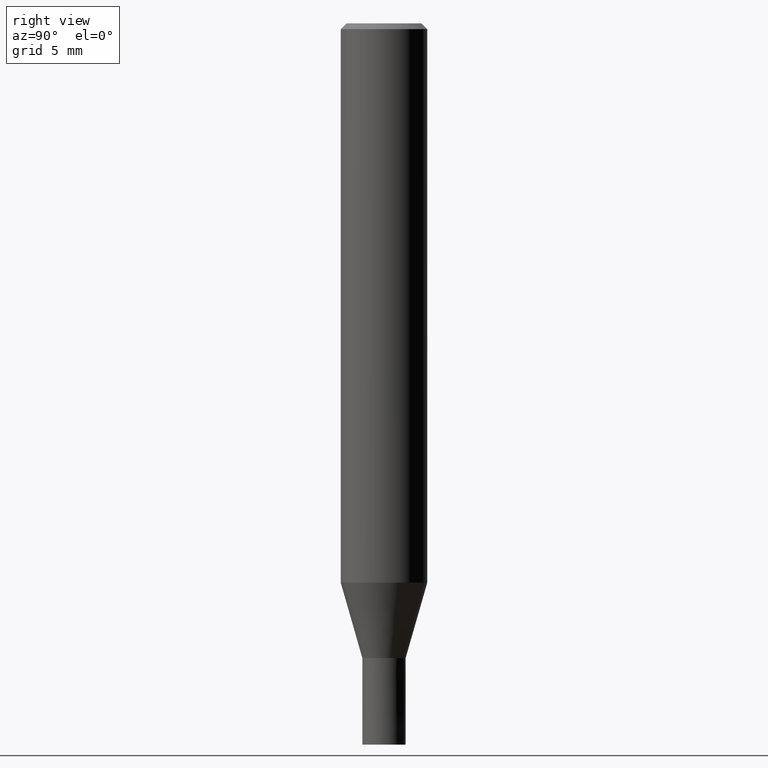
[diagram: clean part render]
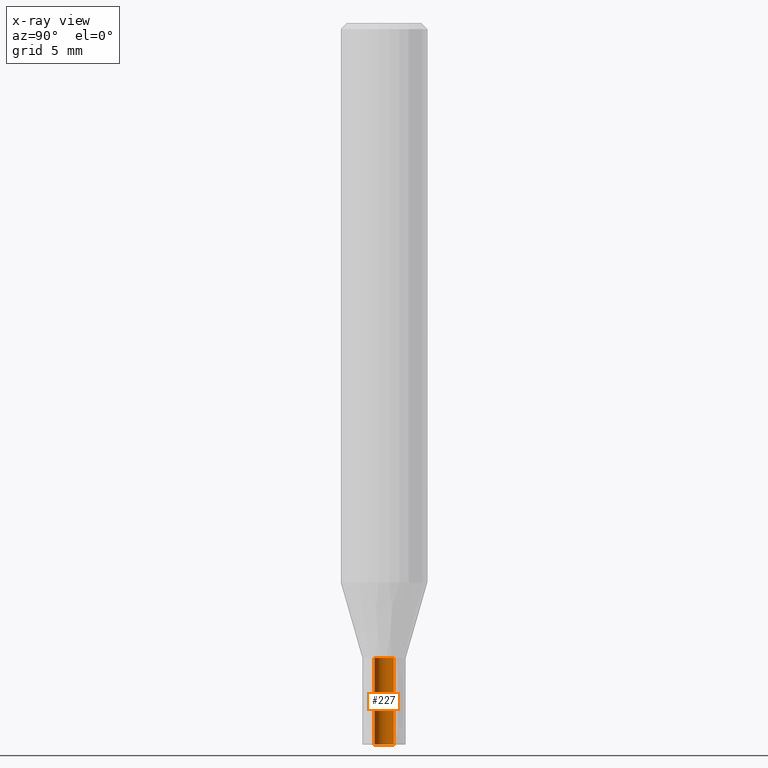
[diagram: x-ray — body ghosted, one internal face saturated and labeled with its STEP entity id]
A machine part, right view, then the same camera in x-ray: the body is ghosted and one INTERNAL B-rep face — a face not visible from any outside direction — is saturated and labeled: STEP entity #227.
In plain terms, the highlighted cylindrical surface (edge-blend (fillet) strip) has radius 0.675 mm, axis along (-0, -0, 1).
Its self-contained STEP definition (entity closure, byte-faithful):
#111=EDGE_CURVE('',#231,#177,#282,.T.);
#141=EDGE_CURVE('',#177,#175,#319,.T.);
#175=VERTEX_POINT('',#355);
#177=VERTEX_POINT('',#357);
#193=EDGE_CURVE('',#175,#249,#374,.T.);
#227=ADVANCED_FACE('',(#412),#413,.F.);
#231=VERTEX_POINT('',#419);
#249=VERTEX_POINT('',#439);
#253=EDGE_CURVE('',#231,#249,#445,.T.);
#282=LINE('',#469,#470);
#319=CIRCLE('',#511,0.675);
#355=CARTESIAN_POINT('',(0.0,0.675,-44.0));
#357=CARTESIAN_POINT('',(8.26609288830105E-017,-0.675,-44.0));
#374=LINE('',#586,#587);
#412=FACE_OUTER_BOUND('',#633,.T.);
#413=CYLINDRICAL_SURFACE('',#634,0.675);
#419=CARTESIAN_POINT('',(8.26609288830105E-017,-0.675,-50.0));
#439=CARTESIAN_POINT('',(0.0,0.675,-50.0));
#445=CIRCLE('',#672,0.675);
#469=CARTESIAN_POINT('',(8.26609288830105E-017,-0.675,-47.0));
#470=VECTOR('',#686,1.0);
#511=AXIS2_PLACEMENT_3D('',#744,#745,#746);
#586=CARTESIAN_POINT('',(-8.26609288830105E-017,0.675,-47.0));
#587=VECTOR('',#802,1.0);
#633=EDGE_LOOP('',(#844,#845,#846,#847));
#634=AXIS2_PLACEMENT_3D('',#848,#849,#850);
#672=AXIS2_PLACEMENT_3D('',#891,#892,#893);
#686=DIRECTION('',(0.0,-0.0,1.0));
#744=CARTESIAN_POINT('',(0.0,0.0,-44.0));
#745=DIRECTION('',(0.0,0.0,-1.0));
#746=DIRECTION('',(0.0,1.0,0.0));
#802=DIRECTION('',(0.0,-0.0,-1.0));
#844=ORIENTED_EDGE('',*,*,#193,.F.);
#845=ORIENTED_EDGE('',*,*,#141,.F.);
#846=ORIENTED_EDGE('',*,*,#111,.F.);
#847=ORIENTED_EDGE('',*,*,#253,.T.);
#848=CARTESIAN_POINT('',(0.0,0.0,-47.0));
#849=DIRECTION('',(-0.0,-0.0,1.0));
#850=DIRECTION('',(0.0,1.0,0.0));
#891=CARTESIAN_POINT('',(0.0,0.0,-50.0));
#892=DIRECTION('',(0.0,0.0,-1.0));
#893=DIRECTION('',(0.0,1.0,0.0));